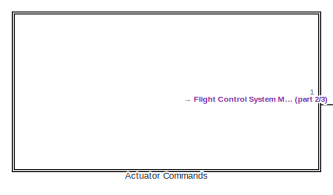
[diagram: root canvas - part 1/3, top left region]
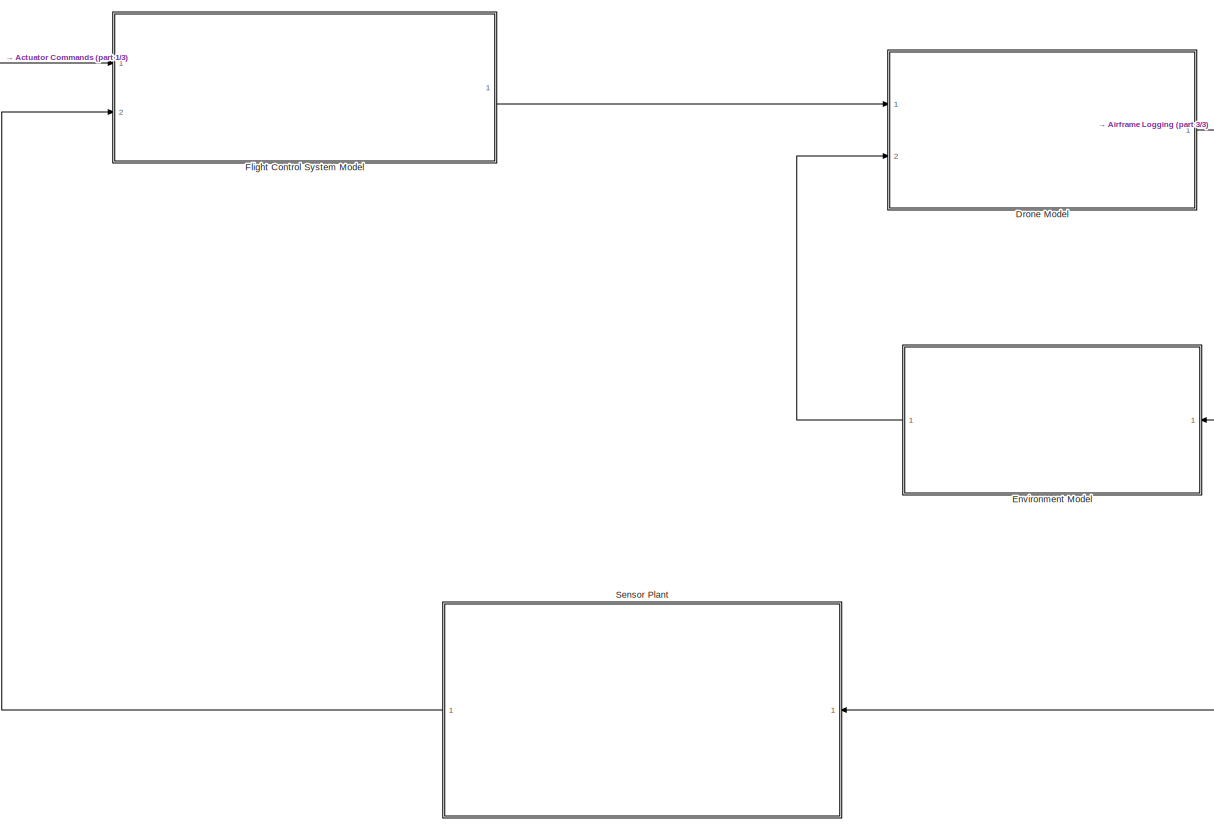
[diagram: root canvas - part 2/3, center side, full height]
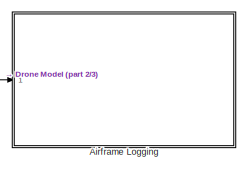
[diagram: root canvas - part 3/3, top right region]
MODEL slx_84bf1e3042fd
KIND model
CONFIG AbsTol = auto
CONFIG EnableMultiTasking = off
CONFIG FixedStep = auto
CONFIG MaxStep = auto
CONFIG MinStep = auto
CONFIG RelTol = 1e-3
CONFIG SampleTimeConstraint = Unconstrained
CONFIG Solver = VariableStepAuto
CONFIG SolverName = VariableStepAuto
CONFIG StartTime = 0.0
CONFIG StopTime = 10.0
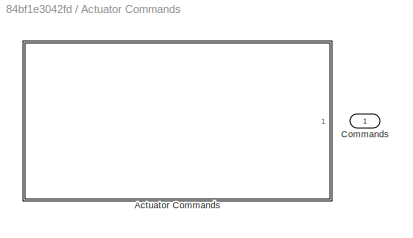
BLOCK [SubSystem] Actuator Commands
  LabelModeActiveChoice = Choice
  Ports = [0, 1]
  RequestExecContextInheritance = off
  Variant = on
  VariantControl = Choice
  VariantControlMode = Label
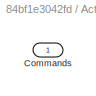
BLOCK [SubSystem] Actuator Commands/Actuator Commands
  Ports = [0, 1]
  RequestExecContextInheritance = off
  VariantControl = Choice
BLOCK [Outport] Actuator Commands/Actuator Commands/Commands
  IconDisplay = Port number
BLOCK [Outport] Actuator Commands/Commands
  IconDisplay = Port number
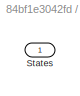
BLOCK [SubSystem] Airframe Logging
  Ports = [1]
  RequestExecContextInheritance = off
BLOCK [Inport] Airframe Logging/States
  IconDisplay = Port number
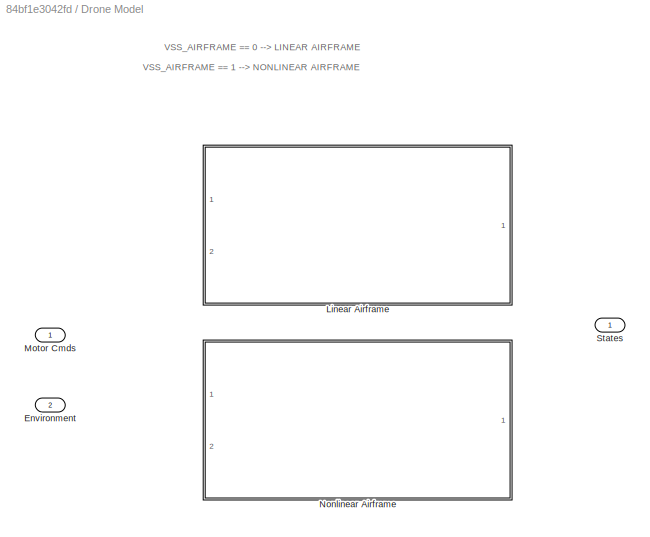
BLOCK [SubSystem] Drone Model
  Ports = [2, 1]
  RequestExecContextInheritance = off
  Variant = on
  VariantControl = Choice
BLOCK [Inport] Drone Model/Environment
  IconDisplay = Port number
  Port = 2
BLOCK [SubSystem] Drone Model/Linear Airframe
  Ports = [2, 1]
  ReferencedSubsystem = LinearAirframe
  RequestExecContextInheritance = off
  VariantControl = VSS_AIRFRAME  == 0
BLOCK [Inport] Drone Model/Motor Cmds
  IconDisplay = Port number
BLOCK [SubSystem] Drone Model/Nonlinear Airframe
  Ports = [2, 1]
  ReferencedSubsystem = NonLinearAirframe
  RequestExecContextInheritance = off
  VariantControl = VSS_AIRFRAME == 1
BLOCK [Outport] Drone Model/States
  IconDisplay = Port number
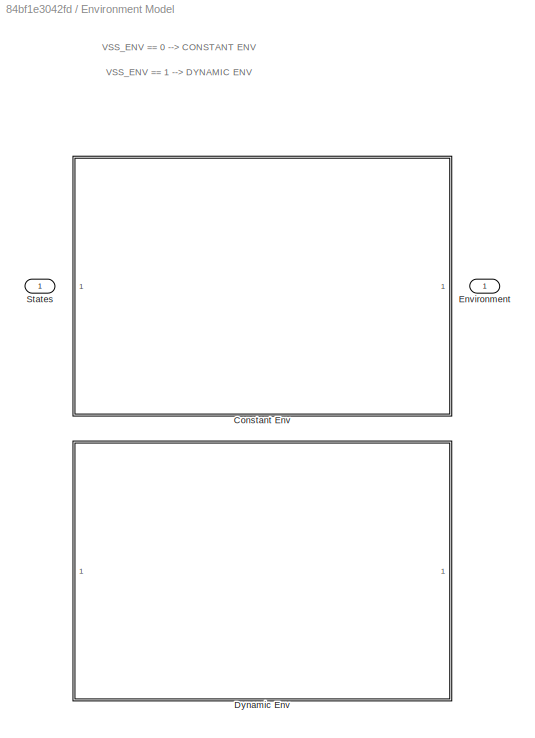
BLOCK [SubSystem] Environment Model
  Ports = [1, 1]
  RequestExecContextInheritance = off
  Variant = on
  VariantControl = Choice
BLOCK [SubSystem] Environment Model/Constant Env
  Ports = [1, 1]
  ReferencedSubsystem = ConstantEnvironment
  RequestExecContextInheritance = off
  VariantControl = VSS_ENV == 0
BLOCK [SubSystem] Environment Model/Dynamic Env
  Ports = [1, 1]
  ReferencedSubsystem = DynamicEnvironment
  RequestExecContextInheritance = off
  VariantControl = VSS_ENV == 1
BLOCK [Outport] Environment Model/Environment
  IconDisplay = Port number
BLOCK [Inport] Environment Model/States
  IconDisplay = Port number
BLOCK [SubSystem] Flight Control System Model
  Ports = [2, 1]
  ReferencedSubsystem = FCS
  RequestExecContextInheritance = off
BLOCK [SubSystem] Sensor Plant
  Ports = [1, 1]
  ReferencedSubsystem = Sensors
  RequestExecContextInheritance = off
ANNOTATION Drone Model: VSS_AIRFRAME == 0 --> LINEAR AIRFRAME
ANNOTATION Drone Model: VSS_AIRFRAME == 1 --> NONLINEAR AIRFRAME
ANNOTATION Environment Model: VSS_ENV == 0 --> CONSTANT ENV
ANNOTATION Environment Model: VSS_ENV == 1 --> DYNAMIC ENV
LINE Actuator Commands:1 -> Flight Control System Model:1
NET Drone Model:1 -> Airframe Logging:1, Environment Model:1, Sensor Plant:1
LINE Environment Model:1 -> Drone Model:2
LINE Flight Control System Model:1 -> Drone Model:1
LINE Sensor Plant:1 -> Flight Control System Model:2
note: NET lines group one-source signal fan-out (src -> all destinations, sorted); 1:1 wires keep LINE
